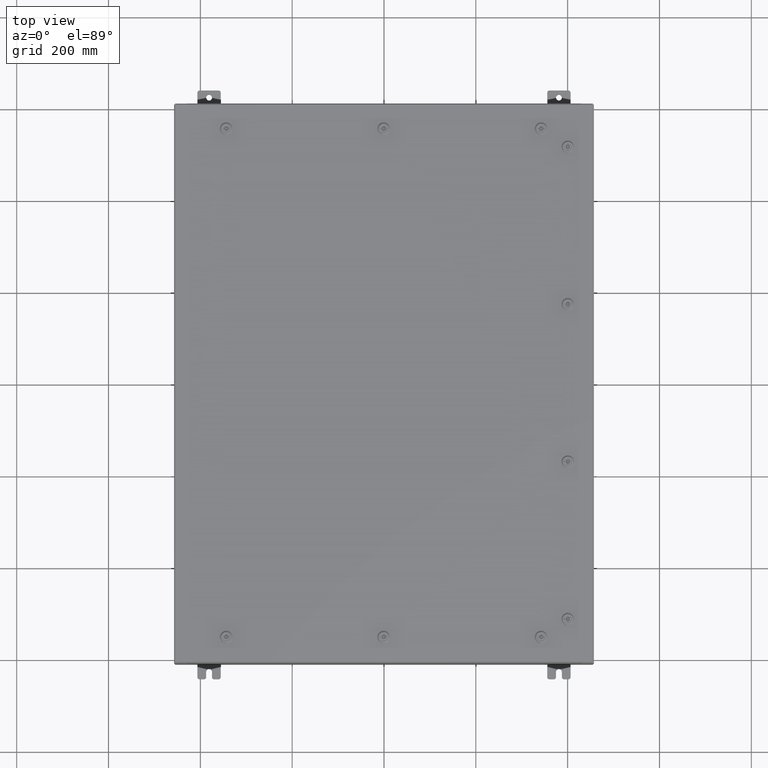
[diagram: clean part render]
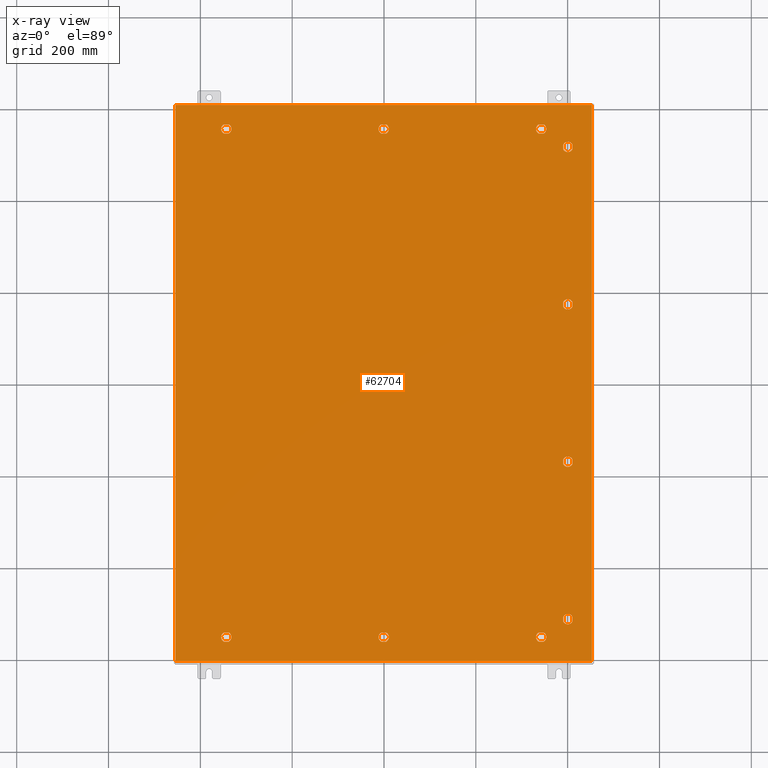
[diagram: x-ray — body ghosted, one internal face saturated and labeled with its STEP entity id]
A machine part, top view, then the same camera in x-ray: the body is ghosted and one INTERNAL B-rep face — a face not visible from any outside direction — is saturated and labeled: STEP entity #62704.
In plain terms, the highlighted planar face has unit normal (0, 0, -1).
Its self-contained STEP definition (entity closure, byte-faithful):
#102 = DIRECTION ( 'NONE',  ( 0.0000000000000000000, 1.000000000000000000, 0.0000000000000000000 ) ) ;
#105 = ORIENTED_EDGE ( 'NONE', *, *, #62404, .F. ) ;
#127 = EDGE_CURVE ( 'NONE', #36390, #28761, #60057, .T. ) ;
#205 = EDGE_CURVE ( 'NONE', #55976, #31044, #15923, .T. ) ;
#274 = CARTESIAN_POINT ( 'NONE',  ( -13.49999999999998600, -21.78780000000000800, -0.07470000000000003000 ) ) ;
#295 = DIRECTION ( 'NONE',  ( -0.0000000000000000000, -0.0000000000000000000, 1.000000000000000000 ) ) ;
#319 = CARTESIAN_POINT ( 'NONE',  ( 1.529834876451987200E-014, 21.78780000000000400, -0.07470000000000003000 ) ) ;
#514 = CARTESIAN_POINT ( 'NONE',  ( 15.39280000000001900, 20.05054762473213300, -0.07470000000000003000 ) ) ;
#655 = EDGE_CURVE ( 'NONE', #23687, #38559, #16725, .T. ) ;
#1155 = DIRECTION ( 'NONE',  ( 1.000000000000000000, 0.0000000000000000000, 0.0000000000000000000 ) ) ;
#1222 = CARTESIAN_POINT ( 'NONE',  ( -13.69945237526786700, 22.18280000000000400, -0.07470000000000003000 ) ) ;
#1656 = CARTESIAN_POINT ( 'NONE',  ( 1.529834876451987200E-014, -21.78780000000000400, -0.07470000000000003000 ) ) ;
#1975 = VECTOR ( 'NONE', #19133, 39.37007874015748100 ) ;
#2293 = CIRCLE ( 'NONE', #13476, 0.4424999999999961700 ) ;
#2319 = EDGE_CURVE ( 'NONE', #3003, #30530, #54145, .T. ) ;
#2478 = ORIENTED_EDGE ( 'NONE', *, *, #127, .T. ) ;
#2726 = EDGE_CURVE ( 'NONE', #18851, #51226, #64144, .T. ) ;
#2738 = VECTOR ( 'NONE', #60632, 39.37007874015748100 ) ;
#2751 = VECTOR ( 'NONE', #22426, 39.37007874015748100 ) ;
#2825 = DIRECTION ( 'NONE',  ( -0.0000000000000000000, -0.0000000000000000000, 1.000000000000000000 ) ) ;
#3003 = VERTEX_POINT ( 'NONE', #5807 ) ;
#3218 = VERTEX_POINT ( 'NONE', #45686 ) ;
#3252 = AXIS2_PLACEMENT_3D ( 'NONE', #29118, #66335, #34485 ) ;
#3388 = DIRECTION ( 'NONE',  ( 1.000000000000000000, 0.0000000000000000000, 0.0000000000000000000 ) ) ;
#3843 = DIRECTION ( 'NONE',  ( 1.000000000000000000, -0.0000000000000000000, -0.0000000000000000000 ) ) ;
#4074 = CIRCLE ( 'NONE', #4520, 0.4424999999999969000 ) ;
#4139 = VECTOR ( 'NONE', #3843, 39.37007874015748100 ) ;
#4144 = VECTOR ( 'NONE', #60455, 39.37007874015748100 ) ;
#4423 = CIRCLE ( 'NONE', #68821, 0.4424999999999961700 ) ;
#4441 = VERTEX_POINT ( 'NONE', #30708 ) ;
#4520 = AXIS2_PLACEMENT_3D ( 'NONE', #21193, #58433, #26544 ) ;
#4596 = VERTEX_POINT ( 'NONE', #37424 ) ;
#4941 = FACE_OUTER_BOUND ( 'NONE', #55787, .T. ) ;
#5455 = CARTESIAN_POINT ( 'NONE',  ( 15.39280000000002200, 20.44945237526790300, -0.07470000000000003000 ) ) ;
#5514 = VERTEX_POINT ( 'NONE', #17545 ) ;
#5596 = VERTEX_POINT ( 'NONE', #39348 ) ;
#5620 = DIRECTION ( 'NONE',  ( -1.000000000000000000, 0.0000000000000000000, 0.0000000000000000000 ) ) ;
#5661 = DIRECTION ( 'NONE',  ( -1.000000000000000000, 9.877868451667453200E-015, 0.0000000000000000000 ) ) ;
#5767 = CARTESIAN_POINT ( 'NONE',  ( 16.18280000000000700, -6.550547624732131700, -0.07470000000000003000 ) ) ;
#5807 = CARTESIAN_POINT ( 'NONE',  ( 16.18280000000000700, 6.949452375267900300, -0.07470000000000000300 ) ) ;
#5853 = LINE ( 'NONE', #43589, #32401 ) ;
#6043 = VECTOR ( 'NONE', #32841, 39.37007874015748100 ) ;
#6058 = CARTESIAN_POINT ( 'NONE',  ( -13.30054762473209500, -22.18280000000000400, -0.07470000000000003000 ) ) ;
#6119 = DIRECTION ( 'NONE',  ( 0.0000000000000000000, 0.0000000000000000000, -1.000000000000000000 ) ) ;
#6185 = ORIENTED_EDGE ( 'NONE', *, *, #30493, .T. ) ;
#6239 = EDGE_LOOP ( 'NONE', ( #51664, #65476, #45673, #34721, #33263 ) ) ;
#6336 = DIRECTION ( 'NONE',  ( -0.0000000000000000000, -0.0000000000000000000, 1.000000000000000000 ) ) ;
#6598 = FACE_BOUND ( 'NONE', #53701, .T. ) ;
#6875 = DIRECTION ( 'NONE',  ( -0.0000000000000000000, -0.0000000000000000000, 1.000000000000000000 ) ) ;
#6927 = LINE ( 'NONE', #52381, #33495 ) ;
#6977 = DIRECTION ( 'NONE',  ( -1.000000000000000000, 9.877868451667453200E-015, 0.0000000000000000000 ) ) ;
#7026 = CARTESIAN_POINT ( 'NONE',  ( 1.529834876451987200E-014, -21.78780000000000400, -0.07470000000000003000 ) ) ;
#7386 = CARTESIAN_POINT ( 'NONE',  ( 16.18280000000001100, 20.44945237526789600, -0.07470000000000003000 ) ) ;
#7408 = VERTEX_POINT ( 'NONE', #22578 ) ;
#7820 = LINE ( 'NONE', #25661, #16895 ) ;
#8287 = VERTEX_POINT ( 'NONE', #48748 ) ;
#8291 = FACE_BOUND ( 'NONE', #27581, .T. ) ;
#8358 = CARTESIAN_POINT ( 'NONE',  ( 0.1994523752679067700, -22.18280000000000000, -0.07470000000000003000 ) ) ;
#8403 = EDGE_CURVE ( 'NONE', #45202, #8287, #61390, .T. ) ;
#8442 = CARTESIAN_POINT ( 'NONE',  ( 15.78780000000001800, -20.25000000000001400, -0.07470000000000003000 ) ) ;
#8653 = CARTESIAN_POINT ( 'NONE',  ( 15.39280000000001900, 6.949452375267904700, -0.07470000000000003000 ) ) ;
#8691 = EDGE_CURVE ( 'NONE', #31044, #67058, #26372, .T. ) ;
#8876 = CARTESIAN_POINT ( 'NONE',  ( 16.18280000000001500, -20.44945237526789600, -0.07470000000000003000 ) ) ;
#9433 = CARTESIAN_POINT ( 'NONE',  ( 13.49999999999998600, 21.78780000000000400, -0.07470000000000003000 ) ) ;
#9725 = EDGE_CURVE ( 'NONE', #4441, #66957, #22993, .T. ) ;
#9974 = EDGE_CURVE ( 'NONE', #49886, #33228, #58754, .T. ) ;
#10069 = CARTESIAN_POINT ( 'NONE',  ( 16.18280000000000700, 6.949452375267900300, -0.07470000000000003000 ) ) ;
#10172 = ORIENTED_EDGE ( 'NONE', *, *, #54108, .F. ) ;
#11135 = CIRCLE ( 'NONE', #68828, 0.4424999999999983400 ) ;
#11211 = DIRECTION ( 'NONE',  ( -0.0000000000000000000, -0.0000000000000000000, 1.000000000000000000 ) ) ;
#11393 = DIRECTION ( 'NONE',  ( 1.000000000000000000, 1.095739467627832000E-014, 0.0000000000000000000 ) ) ;
#11592 = DIRECTION ( 'NONE',  ( -1.095739467627835000E-014, -1.000000000000000000, 0.0000000000000000000 ) ) ;
#11643 = DIRECTION ( 'NONE',  ( -1.000000000000000000, 0.0000000000000000000, 0.0000000000000000000 ) ) ;
#11790 = EDGE_CURVE ( 'NONE', #65344, #43673, #14543, .T. ) ;
#11985 = CARTESIAN_POINT ( 'NONE',  ( 13.30054762473210200, 21.39280000000001200, -0.07470000000000003000 ) ) ;
#12251 = DIRECTION ( 'NONE',  ( -1.000000000000000000, 0.0000000000000000000, 0.0000000000000000000 ) ) ;
#12289 = AXIS2_PLACEMENT_3D ( 'NONE', #66753, #67360, #64688 ) ;
#12303 = VECTOR ( 'NONE', #14532, 39.37007874015748100 ) ;
#12305 = CARTESIAN_POINT ( 'NONE',  ( -0.1994523752678657700, -22.18280000000000400, -0.07470000000000003000 ) ) ;
#12325 = VERTEX_POINT ( 'NONE', #64443 ) ;
#12369 = DIRECTION ( 'NONE',  ( -1.000000000000000000, 0.0000000000000000000, 0.0000000000000000000 ) ) ;
#12712 = CARTESIAN_POINT ( 'NONE',  ( -13.49999999999998600, 21.78780000000000400, -0.07470000000000003000 ) ) ;
#12789 = ORIENTED_EDGE ( 'NONE', *, *, #52147, .T. ) ;
#13289 = VERTEX_POINT ( 'NONE', #67044 ) ;
#13448 = CIRCLE ( 'NONE', #16077, 0.4424999999999983400 ) ;
#13476 = AXIS2_PLACEMENT_3D ( 'NONE', #38623, #6875, #43985 ) ;
#13500 = DIRECTION ( 'NONE',  ( -0.0000000000000000000, -0.0000000000000000000, 1.000000000000000000 ) ) ;
#13508 = CARTESIAN_POINT ( 'NONE',  ( 15.78780000000001500, 20.25000000000001400, -0.07470000000000003000 ) ) ;
#13764 = DIRECTION ( 'NONE',  ( -1.000000000000000000, 0.0000000000000000000, 0.0000000000000000000 ) ) ;
#13804 = VERTEX_POINT ( 'NONE', #32345 ) ;
#14469 = DIRECTION ( 'NONE',  ( -1.000000000000000000, 0.0000000000000000000, 0.0000000000000000000 ) ) ;
#14532 = DIRECTION ( 'NONE',  ( -1.000000000000000000, 1.095739467627832000E-014, 0.0000000000000000000 ) ) ;
#14543 = LINE ( 'NONE', #11985, #16188 ) ;
#14773 = DIRECTION ( 'NONE',  ( -1.000000000000000000, 0.0000000000000000000, 0.0000000000000000000 ) ) ;
#14825 = VERTEX_POINT ( 'NONE', #38198 ) ;
#14834 = EDGE_CURVE ( 'NONE', #12325, #5596, #16790, .T. ) ;
#15154 = CARTESIAN_POINT ( 'NONE',  ( 15.39280000000002200, -20.05054762473213300, -0.07470000000000003000 ) ) ;
#15400 = CARTESIAN_POINT ( 'NONE',  ( 16.18280000000001500, -20.44945237526789600, -0.07470000000000003000 ) ) ;
#15693 = LINE ( 'NONE', #7386, #29827 ) ;
#15810 = VERTEX_POINT ( 'NONE', #62083 ) ;
#15923 = CIRCLE ( 'NONE', #40708, 0.4424999999999983400 ) ;
#16077 = AXIS2_PLACEMENT_3D ( 'NONE', #32064, #295, #37395 ) ;
#16188 = VECTOR ( 'NONE', #49100, 39.37007874015748100 ) ;
#16463 = EDGE_CURVE ( 'NONE', #50995, #33025, #40280, .T. ) ;
#16540 = LINE ( 'NONE', #56784, #4139 ) ;
#16725 = CIRCLE ( 'NONE', #60871, 0.4424999999999972800 ) ;
#16773 = LINE ( 'NONE', #28729, #2738 ) ;
#16790 = LINE ( 'NONE', #64762, #2751 ) ;
#16895 = VECTOR ( 'NONE', #25887, 39.37007874015748100 ) ;
#17048 = ORIENTED_EDGE ( 'NONE', *, *, #44128, .T. ) ;
#17128 = CARTESIAN_POINT ( 'NONE',  ( -13.30054762473210400, -21.39280000000001500, -0.07470000000000003000 ) ) ;
#17493 = CIRCLE ( 'NONE', #31536, 0.4424999999999961700 ) ;
#17540 = VERTEX_POINT ( 'NONE', #22722 ) ;
#17545 = CARTESIAN_POINT ( 'NONE',  ( 16.18280000000001100, 20.44945237526789600, -0.07470000000000000300 ) ) ;
#17944 = AXIS2_PLACEMENT_3D ( 'NONE', #45272, #13500, #50627 ) ;
#17996 = EDGE_CURVE ( 'NONE', #21453, #45202, #7820, .T. ) ;
#18044 = DIRECTION ( 'NONE',  ( -5.478697338139280800E-015, 1.000000000000000000, 0.0000000000000000000 ) ) ;
#18109 = VECTOR ( 'NONE', #14469, 39.37007874015748100 ) ;
#18614 = CARTESIAN_POINT ( 'NONE',  ( 15.39280000000002800, -20.44945237526790300, -0.07470000000000003000 ) ) ;
#18694 = VERTEX_POINT ( 'NONE', #5455 ) ;
#18780 = CARTESIAN_POINT ( 'NONE',  ( -13.49999999999998600, 21.78780000000000400, -0.07470000000000003000 ) ) ;
#18825 = DIRECTION ( 'NONE',  ( -1.000000000000000000, 0.0000000000000000000, 0.0000000000000000000 ) ) ;
#18851 = VERTEX_POINT ( 'NONE', #43464 ) ;
#18992 = EDGE_CURVE ( 'NONE', #67058, #13804, #43409, .T. ) ;
#19037 = FACE_BOUND ( 'NONE', #44248, .T. ) ;
#19133 = DIRECTION ( 'NONE',  ( -1.000000000000000000, -0.0000000000000000000, -0.0000000000000000000 ) ) ;
#19361 = CARTESIAN_POINT ( 'NONE',  ( 0.1994523752678995500, 21.39280000000001200, -0.07470000000000000300 ) ) ;
#20240 = VECTOR ( 'NONE', #24459, 39.37007874015748100 ) ;
#20312 = EDGE_CURVE ( 'NONE', #65674, #3003, #56667, .T. ) ;
#20341 = AXIS2_PLACEMENT_3D ( 'NONE', #34625, #2825, #39920 ) ;
#20660 = FACE_BOUND ( 'NONE', #24664, .T. ) ;
#21095 = VERTEX_POINT ( 'NONE', #57602 ) ;
#21119 = CARTESIAN_POINT ( 'NONE',  ( 15.78780000000000800, -6.750000000000014200, -0.07470000000000003000 ) ) ;
#21193 = CARTESIAN_POINT ( 'NONE',  ( 1.529834876451987200E-014, -21.78780000000000400, -0.07470000000000003000 ) ) ;
#21453 = VERTEX_POINT ( 'NONE', #17128 ) ;
#21556 = ORIENTED_EDGE ( 'NONE', *, *, #22012, .T. ) ;
#21588 = EDGE_CURVE ( 'NONE', #43673, #15810, #65842, .T. ) ;
#21853 = PLANE ( 'NONE',  #29807 ) ;
#22012 = EDGE_CURVE ( 'NONE', #3218, #65674, #13448, .T. ) ;
#22068 = ORIENTED_EDGE ( 'NONE', *, *, #64044, .T. ) ;
#22426 = DIRECTION ( 'NONE',  ( 0.0000000000000000000, -1.000000000000000000, 0.0000000000000000000 ) ) ;
#22578 = CARTESIAN_POINT ( 'NONE',  ( -0.1994523752678689600, -21.39280000000001200, -0.07470000000000003000 ) ) ;
#22722 = CARTESIAN_POINT ( 'NONE',  ( 13.69945237526787100, -21.39280000000001200, -0.07470000000000003000 ) ) ;
#22988 = LINE ( 'NONE', #59848, #51257 ) ;
#22993 = LINE ( 'NONE', #59029, #65450 ) ;
#23180 = CARTESIAN_POINT ( 'NONE',  ( -13.30054762473209400, 22.18280000000000000, -0.07470000000000003000 ) ) ;
#23386 = DIRECTION ( 'NONE',  ( -0.0000000000000000000, -0.0000000000000000000, 1.000000000000000000 ) ) ;
#23517 = CARTESIAN_POINT ( 'NONE',  ( 0.4425000000000125500, -21.78780000000000400, -0.07470000000000003000 ) ) ;
#23687 = VERTEX_POINT ( 'NONE', #42115 ) ;
#23838 = VERTEX_POINT ( 'NONE', #32729 ) ;
#24103 = DIRECTION ( 'NONE',  ( -1.000000000000000000, 0.0000000000000000000, 0.0000000000000000000 ) ) ;
#24206 = ORIENTED_EDGE ( 'NONE', *, *, #65053, .T. ) ;
#24459 = DIRECTION ( 'NONE',  ( -1.095739467627844000E-014, -1.000000000000000000, 0.0000000000000000000 ) ) ;
#24664 = EDGE_LOOP ( 'NONE', ( #67466, #30376, #22068, #47177, #50474 ) ) ;
#24870 = CARTESIAN_POINT ( 'NONE',  ( -13.69945237526787100, -21.39280000000001500, -0.07470000000000003000 ) ) ;
#25092 = EDGE_CURVE ( 'NONE', #68146, #17540, #47216, .T. ) ;
#25205 = AXIS2_PLACEMENT_3D ( 'NONE', #319, #37418, #5661 ) ;
#25577 = CIRCLE ( 'NONE', #62724, 0.4424999999999983400 ) ;
#25661 = CARTESIAN_POINT ( 'NONE',  ( -13.30054762473210400, -21.39280000000001500, -0.07470000000000003000 ) ) ;
#25790 = DIRECTION ( 'NONE',  ( -5.478697338139235000E-015, 1.000000000000000000, 0.0000000000000000000 ) ) ;
#25887 = DIRECTION ( 'NONE',  ( -1.000000000000000000, 0.0000000000000000000, 0.0000000000000000000 ) ) ;
#26372 = LINE ( 'NONE', #62194, #12303 ) ;
#26469 = DIRECTION ( 'NONE',  ( -1.000000000000000000, 0.0000000000000000000, 0.0000000000000000000 ) ) ;
#26501 = CARTESIAN_POINT ( 'NONE',  ( 15.78780000000001500, 20.25000000000001400, -0.07470000000000003000 ) ) ;
#26544 = DIRECTION ( 'NONE',  ( -1.000000000000000000, 0.0000000000000000000, 0.0000000000000000000 ) ) ;
#26557 = DIRECTION ( 'NONE',  ( -0.0000000000000000000, -0.0000000000000000000, 1.000000000000000000 ) ) ;
#26944 = CARTESIAN_POINT ( 'NONE',  ( 16.18280000000001500, 20.05054762473213300, -0.07470000000000003000 ) ) ;
#27124 = DIRECTION ( 'NONE',  ( -1.000000000000000000, -1.095739467627832000E-014, 0.0000000000000000000 ) ) ;
#27239 = EDGE_CURVE ( 'NONE', #30530, #3218, #22988, .T. ) ;
#27581 = EDGE_LOOP ( 'NONE', ( #56311, #63031, #68516, #50207 ) ) ;
#27597 = CIRCLE ( 'NONE', #53733, 0.4424999999999972800 ) ;
#27743 = LINE ( 'NONE', #42541, #40229 ) ;
#28183 = CARTESIAN_POINT ( 'NONE',  ( 1.529834876451987200E-014, 21.78780000000000400, -0.07470000000000003000 ) ) ;
#28729 = CARTESIAN_POINT ( 'NONE',  ( 0.1994523752678995500, -21.39280000000001200, -0.07470000000000003000 ) ) ;
#28761 = VERTEX_POINT ( 'NONE', #66530 ) ;
#28846 = DIRECTION ( 'NONE',  ( -0.0000000000000000000, -0.0000000000000000000, 1.000000000000000000 ) ) ;
#29118 = CARTESIAN_POINT ( 'NONE',  ( 13.49999999999998600, 21.78780000000000400, -0.07470000000000003000 ) ) ;
#29354 = EDGE_CURVE ( 'NONE', #5514, #18694, #47334, .T. ) ;
#29405 = VERTEX_POINT ( 'NONE', #45288 ) ;
#29603 = ORIENTED_EDGE ( 'NONE', *, *, #17996, .T. ) ;
#29752 = EDGE_LOOP ( 'NONE', ( #21556, #44552, #47392, #46232 ) ) ;
#29807 = AXIS2_PLACEMENT_3D ( 'NONE', #64437, #6119, #43227 ) ;
#29827 = VECTOR ( 'NONE', #18044, 39.37007874015748100 ) ;
#30175 = LINE ( 'NONE', #56094, #1975 ) ;
#30237 = AXIS2_PLACEMENT_3D ( 'NONE', #60738, #28846, #66062 ) ;
#30376 = ORIENTED_EDGE ( 'NONE', *, *, #25092, .T. ) ;
#30493 = EDGE_CURVE ( 'NONE', #35277, #33429, #33183, .T. ) ;
#30530 = VERTEX_POINT ( 'NONE', #8653 ) ;
#30666 = LINE ( 'NONE', #55071, #4144 ) ;
#30708 = CARTESIAN_POINT ( 'NONE',  ( 13.69945237526786700, 22.18280000000000400, -0.07470000000000003000 ) ) ;
#30904 = CIRCLE ( 'NONE', #48303, 0.4424999999999969000 ) ;
#31044 = VERTEX_POINT ( 'NONE', #23180 ) ;
#31220 = EDGE_CURVE ( 'NONE', #41925, #55976, #25577, .T. ) ;
#31536 = AXIS2_PLACEMENT_3D ( 'NONE', #55242, #23386, #60627 ) ;
#31844 = DIRECTION ( 'NONE',  ( -1.000000000000000000, 0.0000000000000000000, 0.0000000000000000000 ) ) ;
#32029 = EDGE_CURVE ( 'NONE', #42858, #23838, #60568, .T. ) ;
#32064 = CARTESIAN_POINT ( 'NONE',  ( 15.78780000000001000, 6.750000000000014200, -0.07470000000000003000 ) ) ;
#32114 = DIRECTION ( 'NONE',  ( -0.0000000000000000000, -0.0000000000000000000, 1.000000000000000000 ) ) ;
#32127 = EDGE_LOOP ( 'NONE', ( #61673, #35379, #38787, #37054, #66454 ) ) ;
#32204 = LINE ( 'NONE', #62129, #18109 ) ;
#32345 = CARTESIAN_POINT ( 'NONE',  ( -13.69945237526786900, 21.39280000000001200, -0.07470000000000003000 ) ) ;
#32401 = VECTOR ( 'NONE', #1155, 39.37007874015748100 ) ;
#32609 = CIRCLE ( 'NONE', #25205, 0.4424999999999972800 ) ;
#32729 = CARTESIAN_POINT ( 'NONE',  ( 0.1994523752679054600, -22.18280000000000400, -0.07470000000000000300 ) ) ;
#32841 = DIRECTION ( 'NONE',  ( 1.000000000000000000, -1.095739467627832000E-014, 0.0000000000000000000 ) ) ;
#33009 = AXIS2_PLACEMENT_3D ( 'NONE', #274, #37374, #5620 ) ;
#33025 = VERTEX_POINT ( 'NONE', #37690 ) ;
#33176 = FACE_BOUND ( 'NONE', #32127, .T. ) ;
#33183 = CIRCLE ( 'NONE', #54652, 0.4424999999999961700 ) ;
#33228 = VERTEX_POINT ( 'NONE', #50955 ) ;
#33234 = ORIENTED_EDGE ( 'NONE', *, *, #39715, .T. ) ;
#33263 = ORIENTED_EDGE ( 'NONE', *, *, #40627, .T. ) ;
#33429 = VERTEX_POINT ( 'NONE', #15154 ) ;
#33495 = VECTOR ( 'NONE', #57763, 39.37007874015748100 ) ;
#33551 = DIRECTION ( 'NONE',  ( -1.000000000000000000, 0.0000000000000000000, 0.0000000000000000000 ) ) ;
#33626 = ORIENTED_EDGE ( 'NONE', *, *, #29354, .T. ) ;
#33674 = ORIENTED_EDGE ( 'NONE', *, *, #57315, .T. ) ;
#33783 = CARTESIAN_POINT ( 'NONE',  ( 13.69945237526786900, -22.18280000000000400, -0.07470000000000003000 ) ) ;
#33875 = EDGE_LOOP ( 'NONE', ( #44464, #49965, #33626, #36607 ) ) ;
#33963 = LINE ( 'NONE', #6058, #60624 ) ;
#34485 = DIRECTION ( 'NONE',  ( -1.000000000000000000, 0.0000000000000000000, 0.0000000000000000000 ) ) ;
#34625 = CARTESIAN_POINT ( 'NONE',  ( 13.49999999999998600, -21.78780000000000400, -0.07470000000000003000 ) ) ;
#34721 = ORIENTED_EDGE ( 'NONE', *, *, #9974, .T. ) ;
#34855 = FACE_BOUND ( 'NONE', #29752, .T. ) ;
#35127 = VECTOR ( 'NONE', #39944, 39.37007874015748100 ) ;
#35277 = VERTEX_POINT ( 'NONE', #62334 ) ;
#35375 = EDGE_CURVE ( 'NONE', #36197, #29405, #51954, .T. ) ;
#35379 = ORIENTED_EDGE ( 'NONE', *, *, #60089, .T. ) ;
#35429 = CARTESIAN_POINT ( 'NONE',  ( 13.30054762473210200, 21.39280000000001200, -0.07470000000000003000 ) ) ;
#35734 = EDGE_CURVE ( 'NONE', #59372, #21095, #56139, .T. ) ;
#36197 = VERTEX_POINT ( 'NONE', #5767 ) ;
#36390 = VERTEX_POINT ( 'NONE', #55047 ) ;
#36607 = ORIENTED_EDGE ( 'NONE', *, *, #55336, .T. ) ;
#37054 = ORIENTED_EDGE ( 'NONE', *, *, #205, .T. ) ;
#37081 = CARTESIAN_POINT ( 'NONE',  ( 13.94249999999998500, -21.78780000000000400, -0.07470000000000003000 ) ) ;
#37246 = ORIENTED_EDGE ( 'NONE', *, *, #61610, .T. ) ;
#37374 = DIRECTION ( 'NONE',  ( -0.0000000000000000000, -0.0000000000000000000, 1.000000000000000000 ) ) ;
#37395 = DIRECTION ( 'NONE',  ( -1.000000000000000000, 2.469467112916857400E-015, 0.0000000000000000000 ) ) ;
#37418 = DIRECTION ( 'NONE',  ( -0.0000000000000000000, -0.0000000000000000000, 1.000000000000000000 ) ) ;
#37424 = CARTESIAN_POINT ( 'NONE',  ( 17.84980000000000200, 23.84980000000000200, -0.07470000000000000300 ) ) ;
#37690 = CARTESIAN_POINT ( 'NONE',  ( 13.30054762473209500, -22.18280000000000000, -0.07470000000000003000 ) ) ;
#38090 = CARTESIAN_POINT ( 'NONE',  ( 13.49999999999998600, 21.78780000000000400, -0.07470000000000003000 ) ) ;
#38198 = CARTESIAN_POINT ( 'NONE',  ( -0.1994523752678657700, 22.18280000000000400, -0.07470000000000003000 ) ) ;
#38559 = VERTEX_POINT ( 'NONE', #41617 ) ;
#38623 = CARTESIAN_POINT ( 'NONE',  ( 15.78780000000001800, -20.25000000000001400, -0.07470000000000003000 ) ) ;
#38734 = DIRECTION ( 'NONE',  ( -0.0000000000000000000, -0.0000000000000000000, 1.000000000000000000 ) ) ;
#38787 = ORIENTED_EDGE ( 'NONE', *, *, #31220, .T. ) ;
#39054 = ORIENTED_EDGE ( 'NONE', *, *, #45684, .T. ) ;
#39348 = CARTESIAN_POINT ( 'NONE',  ( -17.84979999999999800, -23.84979999999999800, -0.07470000000000000300 ) ) ;
#39715 = EDGE_CURVE ( 'NONE', #15810, #4441, #4423, .T. ) ;
#39827 = CARTESIAN_POINT ( 'NONE',  ( 16.18280000000000400, -6.949452375267900300, -0.07470000000000003000 ) ) ;
#39895 = CARTESIAN_POINT ( 'NONE',  ( 15.39280000000002200, 20.44945237526790300, -0.07470000000000003000 ) ) ;
#39920 = DIRECTION ( 'NONE',  ( -1.000000000000000000, -9.877868451667478400E-015, 0.0000000000000000000 ) ) ;
#39944 = DIRECTION ( 'NONE',  ( 1.095739467627844000E-014, -1.000000000000000000, 0.0000000000000000000 ) ) ;
#39965 = EDGE_CURVE ( 'NONE', #33429, #47715, #63402, .T. ) ;
#40059 = CARTESIAN_POINT ( 'NONE',  ( 13.69945237526786900, 21.39280000000001200, -0.07470000000000003000 ) ) ;
#40229 = VECTOR ( 'NONE', #102, 39.37007874015748100 ) ;
#40280 = CIRCLE ( 'NONE', #20341, 0.4424999999999961700 ) ;
#40469 = EDGE_LOOP ( 'NONE', ( #56521, #33234, #62411, #12789, #53330 ) ) ;
#40627 = EDGE_CURVE ( 'NONE', #33228, #7408, #16773, .T. ) ;
#40708 = AXIS2_PLACEMENT_3D ( 'NONE', #12712, #32114, #12251 ) ;
#40804 = VECTOR ( 'NONE', #25790, 39.37007874015748100 ) ;
#41076 = AXIS2_PLACEMENT_3D ( 'NONE', #58450, #26557, #63779 ) ;
#41617 = CARTESIAN_POINT ( 'NONE',  ( 0.1994523752679049900, 22.18280000000000000, -0.07470000000000003000 ) ) ;
#41884 = EDGE_CURVE ( 'NONE', #51226, #23687, #32609, .T. ) ;
#41925 = VERTEX_POINT ( 'NONE', #42987 ) ;
#42045 = EDGE_CURVE ( 'NONE', #23838, #49886, #27597, .T. ) ;
#42115 = CARTESIAN_POINT ( 'NONE',  ( 0.4425000000000125500, 21.78780000000000400, -0.07470000000000003000 ) ) ;
#42258 = VECTOR ( 'NONE', #67417, 39.37007874015748100 ) ;
#42541 = CARTESIAN_POINT ( 'NONE',  ( 17.84980000000000200, -23.84980000000000200, -0.07470000000000019700 ) ) ;
#42858 = VERTEX_POINT ( 'NONE', #12305 ) ;
#42982 = CARTESIAN_POINT ( 'NONE',  ( 13.49999999999998600, -21.78780000000000400, -0.07470000000000003000 ) ) ;
#42987 = CARTESIAN_POINT ( 'NONE',  ( -13.30054762473210200, 21.39280000000001200, -0.07470000000000000300 ) ) ;
#43227 = DIRECTION ( 'NONE',  ( -1.000000000000000000, 0.0000000000000000000, -0.0000000000000000000 ) ) ;
#43269 = VECTOR ( 'NONE', #61503, 39.37007874015748100 ) ;
#43409 = CIRCLE ( 'NONE', #30237, 0.4424999999999961700 ) ;
#43436 = DIRECTION ( 'NONE',  ( -1.000000000000000000, 0.0000000000000000000, 0.0000000000000000000 ) ) ;
#43457 = AXIS2_PLACEMENT_3D ( 'NONE', #45423, #46734, #47467 ) ;
#43464 = CARTESIAN_POINT ( 'NONE',  ( -0.1994523752678689600, 21.39280000000001200, -0.07470000000000003000 ) ) ;
#43589 = CARTESIAN_POINT ( 'NONE',  ( -13.30054762473210200, 21.39280000000001200, -0.07470000000000003000 ) ) ;
#43660 = ORIENTED_EDGE ( 'NONE', *, *, #61910, .T. ) ;
#43673 = VERTEX_POINT ( 'NONE', #40059 ) ;
#43677 = EDGE_CURVE ( 'NONE', #21095, #36197, #57441, .T. ) ;
#43985 = DIRECTION ( 'NONE',  ( -1.000000000000000000, 0.0000000000000000000, 0.0000000000000000000 ) ) ;
#44128 = EDGE_CURVE ( 'NONE', #28761, #21453, #17493, .T. ) ;
#44132 = DIRECTION ( 'NONE',  ( -0.0000000000000000000, -0.0000000000000000000, 1.000000000000000000 ) ) ;
#44248 = EDGE_LOOP ( 'NONE', ( #33674, #65514, #55561, #64876, #39054 ) ) ;
#44464 = ORIENTED_EDGE ( 'NONE', *, *, #54482, .T. ) ;
#44552 = ORIENTED_EDGE ( 'NONE', *, *, #20312, .T. ) ;
#44695 = VECTOR ( 'NONE', #66657, 39.37007874015748100 ) ;
#45202 = VERTEX_POINT ( 'NONE', #24870 ) ;
#45272 = CARTESIAN_POINT ( 'NONE',  ( 15.78780000000000800, -6.750000000000014200, -0.07470000000000003000 ) ) ;
#45276 = CIRCLE ( 'NONE', #46593, 0.4424999999999961700 ) ;
#45288 = CARTESIAN_POINT ( 'NONE',  ( 15.39280000000001200, -6.550547624732131700, -0.07470000000000003000 ) ) ;
#45411 = CARTESIAN_POINT ( 'NONE',  ( 15.39280000000002800, -20.44945237526790300, -0.07470000000000000300 ) ) ;
#45423 = CARTESIAN_POINT ( 'NONE',  ( 15.78780000000001000, 6.750000000000014200, -0.07470000000000003000 ) ) ;
#45433 = EDGE_LOOP ( 'NONE', ( #6185, #64609, #24206, #37246 ) ) ;
#45547 = DIRECTION ( 'NONE',  ( -0.0000000000000000000, -0.0000000000000000000, 1.000000000000000000 ) ) ;
#45673 = ORIENTED_EDGE ( 'NONE', *, *, #42045, .T. ) ;
#45684 = EDGE_CURVE ( 'NONE', #38559, #14825, #30666, .T. ) ;
#45686 = CARTESIAN_POINT ( 'NONE',  ( 15.39280000000001400, 6.550547624732131700, -0.07470000000000003000 ) ) ;
#46122 = EDGE_CURVE ( 'NONE', #50275, #5514, #15693, .T. ) ;
#46232 = ORIENTED_EDGE ( 'NONE', *, *, #27239, .T. ) ;
#46542 = EDGE_CURVE ( 'NONE', #7408, #42858, #4074, .T. ) ;
#46555 = DIRECTION ( 'NONE',  ( -0.0000000000000000000, -0.0000000000000000000, 1.000000000000000000 ) ) ;
#46593 = AXIS2_PLACEMENT_3D ( 'NONE', #26501, #63717, #31844 ) ;
#46695 = LINE ( 'NONE', #64720, #6043 ) ;
#46734 = DIRECTION ( 'NONE',  ( -0.0000000000000000000, -0.0000000000000000000, 1.000000000000000000 ) ) ;
#47177 = ORIENTED_EDGE ( 'NONE', *, *, #16463, .T. ) ;
#47216 = CIRCLE ( 'NONE', #41076, 0.4424999999999983400 ) ;
#47256 = FACE_BOUND ( 'NONE', #40469, .T. ) ;
#47334 = CIRCLE ( 'NONE', #58649, 0.4424999999999961700 ) ;
#47392 = ORIENTED_EDGE ( 'NONE', *, *, #2319, .T. ) ;
#47467 = DIRECTION ( 'NONE',  ( -1.000000000000000000, 0.0000000000000000000, 0.0000000000000000000 ) ) ;
#47715 = VERTEX_POINT ( 'NONE', #45411 ) ;
#48032 = VERTEX_POINT ( 'NONE', #15400 ) ;
#48276 = VECTOR ( 'NONE', #3388, 39.37007874015748100 ) ;
#48303 = AXIS2_PLACEMENT_3D ( 'NONE', #28183, #65422, #33551 ) ;
#48317 = DIRECTION ( 'NONE',  ( -1.000000000000000000, 0.0000000000000000000, 0.0000000000000000000 ) ) ;
#48748 = CARTESIAN_POINT ( 'NONE',  ( -13.69945237526786900, -22.18280000000000700, -0.07470000000000003000 ) ) ;
#48789 = CARTESIAN_POINT ( 'NONE',  ( 15.39280000000001500, -6.949452375267905600, -0.07470000000000000300 ) ) ;
#48942 = FACE_BOUND ( 'NONE', #45433, .T. ) ;
#49100 = DIRECTION ( 'NONE',  ( 1.000000000000000000, 0.0000000000000000000, 0.0000000000000000000 ) ) ;
#49886 = VERTEX_POINT ( 'NONE', #23517 ) ;
#49965 = ORIENTED_EDGE ( 'NONE', *, *, #46122, .T. ) ;
#50207 = ORIENTED_EDGE ( 'NONE', *, *, #43677, .T. ) ;
#50275 = VERTEX_POINT ( 'NONE', #26944 ) ;
#50474 = ORIENTED_EDGE ( 'NONE', *, *, #57204, .T. ) ;
#50627 = DIRECTION ( 'NONE',  ( -1.000000000000000000, 0.0000000000000000000, 0.0000000000000000000 ) ) ;
#50645 = DIRECTION ( 'NONE',  ( -0.0000000000000000000, -0.0000000000000000000, 1.000000000000000000 ) ) ;
#50657 = CARTESIAN_POINT ( 'NONE',  ( -13.05749999999998900, 21.78780000000000400, -0.07470000000000003000 ) ) ;
#50955 = CARTESIAN_POINT ( 'NONE',  ( 0.1994523752679002700, -21.39280000000001200, -0.07470000000000003000 ) ) ;
#50995 = VERTEX_POINT ( 'NONE', #59163 ) ;
#51226 = VERTEX_POINT ( 'NONE', #19361 ) ;
#51257 = VECTOR ( 'NONE', #11592, 39.37007874015748100 ) ;
#51564 = EDGE_CURVE ( 'NONE', #13289, #4596, #27743, .T. ) ;
#51664 = ORIENTED_EDGE ( 'NONE', *, *, #46542, .T. ) ;
#51954 = CIRCLE ( 'NONE', #63344, 0.4424999999999983400 ) ;
#52147 = EDGE_CURVE ( 'NONE', #66957, #65344, #11135, .T. ) ;
#52381 = CARTESIAN_POINT ( 'NONE',  ( 15.39280000000001500, -6.949452375267904700, -0.07470000000000003000 ) ) ;
#52545 = VERTEX_POINT ( 'NONE', #33783 ) ;
#53034 = ORIENTED_EDGE ( 'NONE', *, *, #8403, .T. ) ;
#53330 = ORIENTED_EDGE ( 'NONE', *, *, #11790, .T. ) ;
#53701 = EDGE_LOOP ( 'NONE', ( #53034, #43660, #2478, #17048, #29603 ) ) ;
#53733 = AXIS2_PLACEMENT_3D ( 'NONE', #7026, #44132, #12369 ) ;
#54108 = EDGE_CURVE ( 'NONE', #4596, #12325, #30175, .T. ) ;
#54145 = CIRCLE ( 'NONE', #43457, 0.4424999999999983400 ) ;
#54482 = EDGE_CURVE ( 'NONE', #66925, #50275, #45276, .T. ) ;
#54555 = EDGE_CURVE ( 'NONE', #52545, #68146, #68534, .T. ) ;
#54652 = AXIS2_PLACEMENT_3D ( 'NONE', #8442, #45547, #13764 ) ;
#55047 = CARTESIAN_POINT ( 'NONE',  ( -13.30054762473209500, -22.18280000000000400, -0.07470000000000000300 ) ) ;
#55071 = CARTESIAN_POINT ( 'NONE',  ( 0.1994523752679067700, 22.18280000000000000, -0.07470000000000003000 ) ) ;
#55242 = CARTESIAN_POINT ( 'NONE',  ( -13.49999999999998600, -21.78780000000000800, -0.07470000000000003000 ) ) ;
#55336 = EDGE_CURVE ( 'NONE', #18694, #66925, #62705, .T. ) ;
#55561 = ORIENTED_EDGE ( 'NONE', *, *, #41884, .T. ) ;
#55787 = EDGE_LOOP ( 'NONE', ( #60338, #105, #59155, #10172 ) ) ;
#55958 = DIRECTION ( 'NONE',  ( -0.0000000000000000000, -0.0000000000000000000, 1.000000000000000000 ) ) ;
#55976 = VERTEX_POINT ( 'NONE', #50657 ) ;
#56088 = CARTESIAN_POINT ( 'NONE',  ( 0.1994523752678995500, 21.39280000000001200, -0.07470000000000003000 ) ) ;
#56094 = CARTESIAN_POINT ( 'NONE',  ( 17.84980000000000200, 23.84980000000000900, -0.07469999999999804600 ) ) ;
#56139 = CIRCLE ( 'NONE', #17944, 0.4424999999999983400 ) ;
#56238 = AXIS2_PLACEMENT_3D ( 'NONE', #1656, #38734, #6977 ) ;
#56311 = ORIENTED_EDGE ( 'NONE', *, *, #35375, .T. ) ;
#56451 = LINE ( 'NONE', #8876, #42258 ) ;
#56521 = ORIENTED_EDGE ( 'NONE', *, *, #21588, .T. ) ;
#56667 = LINE ( 'NONE', #10069, #40804 ) ;
#56784 = CARTESIAN_POINT ( 'NONE',  ( -17.84979999999999800, -23.84980000000000200, -0.07469999999999804600 ) ) ;
#57204 = EDGE_CURVE ( 'NONE', #33025, #52545, #46695, .T. ) ;
#57315 = EDGE_CURVE ( 'NONE', #14825, #18851, #30904, .T. ) ;
#57441 = LINE ( 'NONE', #39827, #43269 ) ;
#57602 = CARTESIAN_POINT ( 'NONE',  ( 16.18280000000000400, -6.949452375267900300, -0.07470000000000003000 ) ) ;
#57763 = DIRECTION ( 'NONE',  ( 1.095739467627835000E-014, -1.000000000000000000, 0.0000000000000000000 ) ) ;
#58363 = DIRECTION ( 'NONE',  ( -0.0000000000000000000, -0.0000000000000000000, 1.000000000000000000 ) ) ;
#58433 = DIRECTION ( 'NONE',  ( -0.0000000000000000000, -0.0000000000000000000, 1.000000000000000000 ) ) ;
#58450 = CARTESIAN_POINT ( 'NONE',  ( 13.49999999999998600, -21.78780000000000400, -0.07470000000000003000 ) ) ;
#58649 = AXIS2_PLACEMENT_3D ( 'NONE', #13508, #50645, #18825 ) ;
#58754 = CIRCLE ( 'NONE', #56238, 0.4424999999999972800 ) ;
#59029 = CARTESIAN_POINT ( 'NONE',  ( 13.30054762473209400, 22.18280000000000000, -0.07470000000000003000 ) ) ;
#59056 = CARTESIAN_POINT ( 'NONE',  ( 13.30054762473209400, 22.18280000000000000, -0.07470000000000000300 ) ) ;
#59155 = ORIENTED_EDGE ( 'NONE', *, *, #14834, .F. ) ;
#59163 = CARTESIAN_POINT ( 'NONE',  ( 13.30054762473210400, -21.39280000000001200, -0.07470000000000000300 ) ) ;
#59372 = VERTEX_POINT ( 'NONE', #48789 ) ;
#59848 = CARTESIAN_POINT ( 'NONE',  ( 15.39280000000001900, 6.949452375267904700, -0.07470000000000003000 ) ) ;
#60057 = CIRCLE ( 'NONE', #12289, 0.4424999999999961700 ) ;
#60089 = EDGE_CURVE ( 'NONE', #13804, #41925, #5853, .T. ) ;
#60338 = ORIENTED_EDGE ( 'NONE', *, *, #51564, .F. ) ;
#60455 = DIRECTION ( 'NONE',  ( -1.000000000000000000, 1.095739467627836300E-014, 0.0000000000000000000 ) ) ;
#60568 = LINE ( 'NONE', #8358, #44695 ) ;
#60624 = VECTOR ( 'NONE', #11393, 39.37007874015748100 ) ;
#60627 = DIRECTION ( 'NONE',  ( -1.000000000000000000, 0.0000000000000000000, 0.0000000000000000000 ) ) ;
#60632 = DIRECTION ( 'NONE',  ( -1.000000000000000000, 0.0000000000000000000, 0.0000000000000000000 ) ) ;
#60738 = CARTESIAN_POINT ( 'NONE',  ( -13.49999999999998600, 21.78780000000000400, -0.07470000000000003000 ) ) ;
#60871 = AXIS2_PLACEMENT_3D ( 'NONE', #62781, #65315, #11643 ) ;
#60956 = AXIS2_PLACEMENT_3D ( 'NONE', #42982, #11211, #48317 ) ;
#61390 = CIRCLE ( 'NONE', #33009, 0.4424999999999983400 ) ;
#61490 = FACE_BOUND ( 'NONE', #6239, .T. ) ;
#61503 = DIRECTION ( 'NONE',  ( 5.478697338139235000E-015, 1.000000000000000000, 0.0000000000000000000 ) ) ;
#61610 = EDGE_CURVE ( 'NONE', #48032, #35277, #56451, .T. ) ;
#61673 = ORIENTED_EDGE ( 'NONE', *, *, #18992, .T. ) ;
#61910 = EDGE_CURVE ( 'NONE', #8287, #36390, #33963, .T. ) ;
#62083 = CARTESIAN_POINT ( 'NONE',  ( 13.94249999999998300, 21.78780000000000400, -0.07470000000000003000 ) ) ;
#62129 = CARTESIAN_POINT ( 'NONE',  ( 13.30054762473210400, -21.39280000000001200, -0.07470000000000003000 ) ) ;
#62194 = CARTESIAN_POINT ( 'NONE',  ( -13.30054762473209400, 22.18280000000000000, -0.07470000000000003000 ) ) ;
#62334 = CARTESIAN_POINT ( 'NONE',  ( 16.18280000000001800, -20.05054762473213300, -0.07470000000000003000 ) ) ;
#62404 = EDGE_CURVE ( 'NONE', #5596, #13289, #16540, .T. ) ;
#62411 = ORIENTED_EDGE ( 'NONE', *, *, #9725, .T. ) ;
#62704 = ADVANCED_FACE ( 'NONE', ( #48942, #8291, #63123, #34855, #20660, #6598, #61490, #47256, #33176, #19037, #4941 ), #21853, .T. ) ;
#62705 = LINE ( 'NONE', #39895, #20240 ) ;
#62724 = AXIS2_PLACEMENT_3D ( 'NONE', #18780, #55958, #24103 ) ;
#62781 = CARTESIAN_POINT ( 'NONE',  ( 1.529834876451987200E-014, 21.78780000000000400, -0.07470000000000003000 ) ) ;
#63031 = ORIENTED_EDGE ( 'NONE', *, *, #68483, .T. ) ;
#63123 = FACE_BOUND ( 'NONE', #33875, .T. ) ;
#63344 = AXIS2_PLACEMENT_3D ( 'NONE', #21119, #58363, #26469 ) ;
#63402 = LINE ( 'NONE', #18614, #35127 ) ;
#63717 = DIRECTION ( 'NONE',  ( -0.0000000000000000000, -0.0000000000000000000, 1.000000000000000000 ) ) ;
#63779 = DIRECTION ( 'NONE',  ( -1.000000000000000000, 0.0000000000000000000, 0.0000000000000000000 ) ) ;
#64009 = CARTESIAN_POINT ( 'NONE',  ( 16.18280000000000700, 6.550547624732131700, -0.07470000000000003000 ) ) ;
#64044 = EDGE_CURVE ( 'NONE', #17540, #50995, #32204, .T. ) ;
#64144 = LINE ( 'NONE', #56088, #48276 ) ;
#64437 = CARTESIAN_POINT ( 'NONE',  ( 0.0000000000000000000, 0.0000000000000000000, -0.07470000000000000300 ) ) ;
#64443 = CARTESIAN_POINT ( 'NONE',  ( -17.84979999999999500, 23.84980000000000200, -0.07470000000000000300 ) ) ;
#64609 = ORIENTED_EDGE ( 'NONE', *, *, #39965, .T. ) ;
#64688 = DIRECTION ( 'NONE',  ( -1.000000000000000000, 0.0000000000000000000, 0.0000000000000000000 ) ) ;
#64720 = CARTESIAN_POINT ( 'NONE',  ( 13.30054762473209500, -22.18280000000000000, -0.07470000000000003000 ) ) ;
#64762 = CARTESIAN_POINT ( 'NONE',  ( -17.84979999999999500, 23.84980000000000900, -0.07470000000000129300 ) ) ;
#64876 = ORIENTED_EDGE ( 'NONE', *, *, #655, .T. ) ;
#65053 = EDGE_CURVE ( 'NONE', #47715, #48032, #2293, .T. ) ;
#65315 = DIRECTION ( 'NONE',  ( -0.0000000000000000000, -0.0000000000000000000, 1.000000000000000000 ) ) ;
#65344 = VERTEX_POINT ( 'NONE', #35429 ) ;
#65422 = DIRECTION ( 'NONE',  ( -0.0000000000000000000, -0.0000000000000000000, 1.000000000000000000 ) ) ;
#65450 = VECTOR ( 'NONE', #27124, 39.37007874015748100 ) ;
#65476 = ORIENTED_EDGE ( 'NONE', *, *, #32029, .T. ) ;
#65514 = ORIENTED_EDGE ( 'NONE', *, *, #2726, .T. ) ;
#65674 = VERTEX_POINT ( 'NONE', #64009 ) ;
#65842 = CIRCLE ( 'NONE', #3252, 0.4424999999999961700 ) ;
#66062 = DIRECTION ( 'NONE',  ( -1.000000000000000000, 0.0000000000000000000, 0.0000000000000000000 ) ) ;
#66335 = DIRECTION ( 'NONE',  ( -0.0000000000000000000, -0.0000000000000000000, 1.000000000000000000 ) ) ;
#66454 = ORIENTED_EDGE ( 'NONE', *, *, #8691, .T. ) ;
#66530 = CARTESIAN_POINT ( 'NONE',  ( -13.05749999999999000, -21.78780000000000800, -0.07470000000000003000 ) ) ;
#66657 = DIRECTION ( 'NONE',  ( 1.000000000000000000, 1.095739467627836300E-014, 0.0000000000000000000 ) ) ;
#66753 = CARTESIAN_POINT ( 'NONE',  ( -13.49999999999998600, -21.78780000000000800, -0.07470000000000003000 ) ) ;
#66925 = VERTEX_POINT ( 'NONE', #514 ) ;
#66957 = VERTEX_POINT ( 'NONE', #59056 ) ;
#67044 = CARTESIAN_POINT ( 'NONE',  ( 17.84980000000000200, -23.84979999999999800, -0.07470000000000000300 ) ) ;
#67058 = VERTEX_POINT ( 'NONE', #1222 ) ;
#67360 = DIRECTION ( 'NONE',  ( -0.0000000000000000000, -0.0000000000000000000, 1.000000000000000000 ) ) ;
#67417 = DIRECTION ( 'NONE',  ( 5.478697338139280800E-015, 1.000000000000000000, 0.0000000000000000000 ) ) ;
#67466 = ORIENTED_EDGE ( 'NONE', *, *, #54555, .T. ) ;
#68146 = VERTEX_POINT ( 'NONE', #37081 ) ;
#68483 = EDGE_CURVE ( 'NONE', #29405, #59372, #6927, .T. ) ;
#68516 = ORIENTED_EDGE ( 'NONE', *, *, #35734, .T. ) ;
#68534 = CIRCLE ( 'NONE', #60956, 0.4424999999999983400 ) ;
#68821 = AXIS2_PLACEMENT_3D ( 'NONE', #38090, #6336, #43436 ) ;
#68828 = AXIS2_PLACEMENT_3D ( 'NONE', #9433, #46555, #14773 ) ;